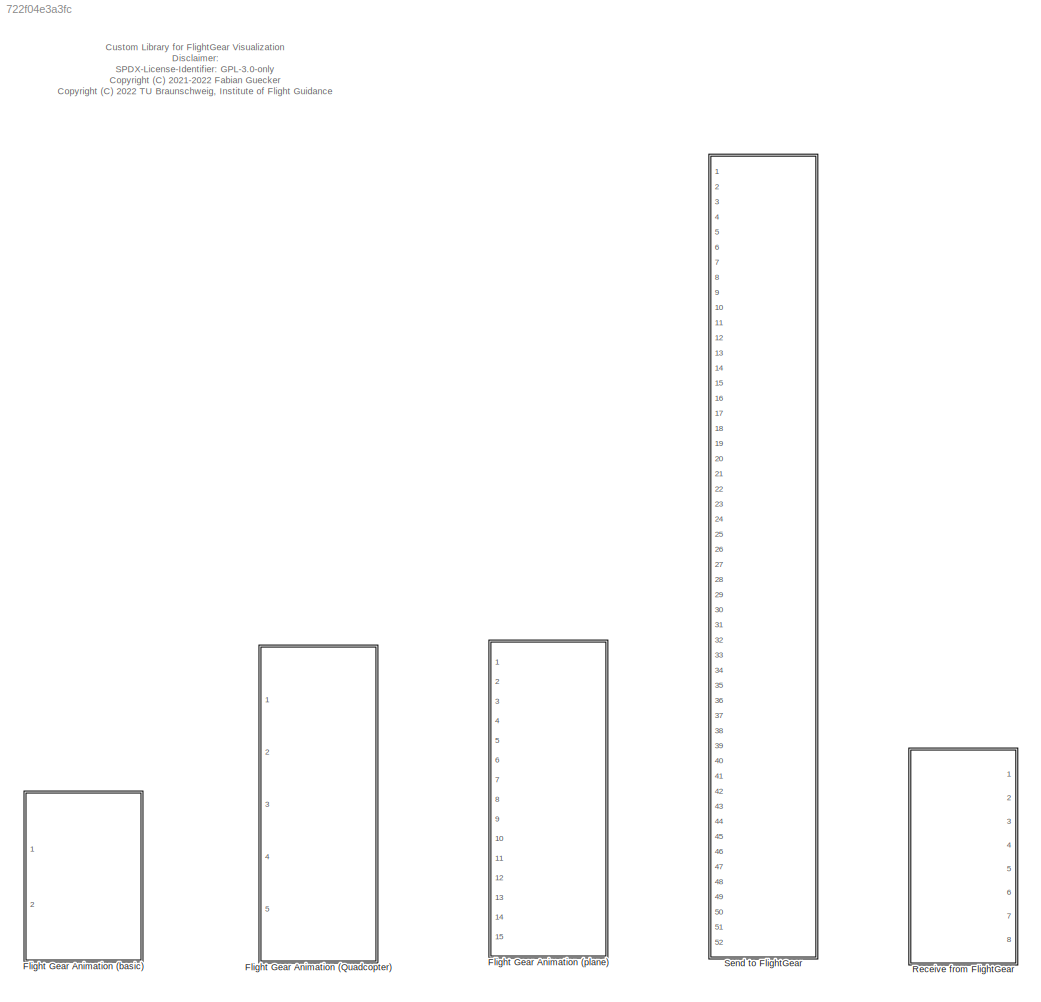
MODEL slx_722f04e3a3fc
KIND library
CONFIG AbsTol = auto
CONFIG EnableMultiTasking = off
CONFIG FixedStep = auto
CONFIG MaxStep = auto
CONFIG MinStep = auto
CONFIG RelTol = 1e-3
CONFIG SampleTimeConstraint = Unconstrained
CONFIG Solver = VariableStepAuto
CONFIG SolverName = VariableStepAuto
CONFIG StartTime = 0.0
CONFIG StopTime = 10.0
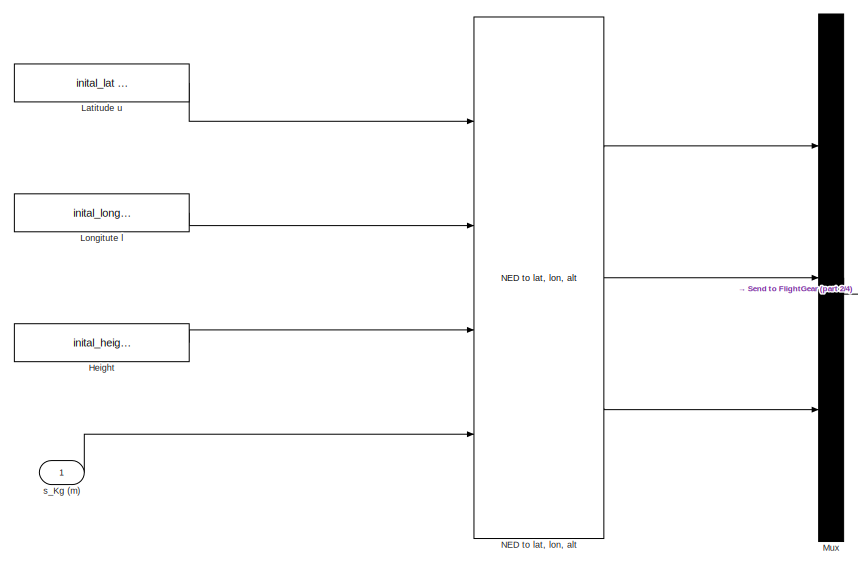
[diagram: Flight Gear Animation (Quadcopter) - part 1/4, top left region]
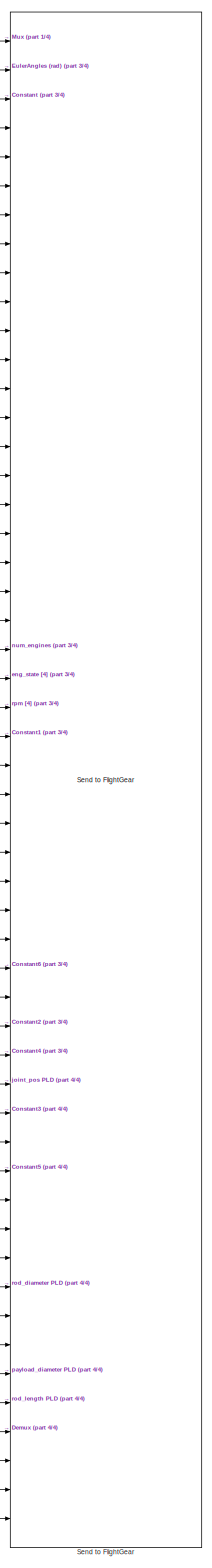
[diagram: Flight Gear Animation (Quadcopter) - part 2/4, right side, full height]
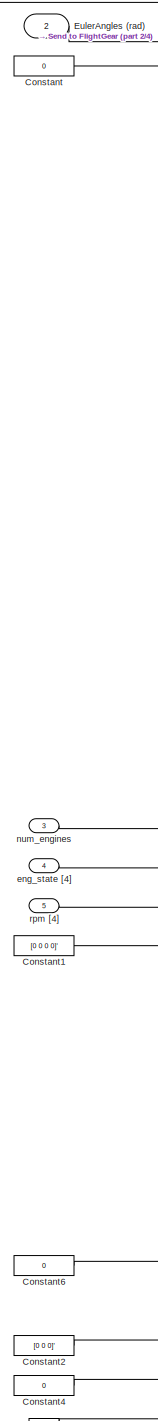
[diagram: Flight Gear Animation (Quadcopter) - part 3/4, central region]
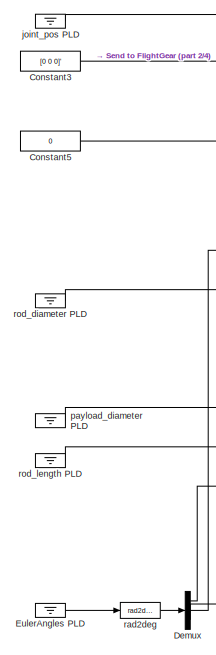
[diagram: Flight Gear Animation (Quadcopter) - part 4/4, bottom right region]
BLOCK [SubSystem] Flight Gear Animation (Quadcopter)
  Ports = [5]
  RequestExecContextInheritance = off
BLOCK [Constant] Flight Gear Animation (Quadcopter)/Constant
  Value = 0
BLOCK [Constant] Flight Gear Animation (Quadcopter)/Constant1
  Value = [0 0 0 0]'
  VectorParams1D = off
BLOCK [Constant] Flight Gear Animation (Quadcopter)/Constant2
  Value = [0 0 0]'
  VectorParams1D = off
BLOCK [Constant] Flight Gear Animation (Quadcopter)/Constant3
  Value = [0 0 0]'
  VectorParams1D = off
BLOCK [Constant] Flight Gear Animation (Quadcopter)/Constant4
  Value = 0
BLOCK [Constant] Flight Gear Animation (Quadcopter)/Constant5
  Value = 0
BLOCK [Constant] Flight Gear Animation (Quadcopter)/Constant6
  Value = 0
BLOCK [Demux] Flight Gear Animation (Quadcopter)/Demux
  DisplayOption = bar
  Outputs = 3
  Ports = [1, 3]
BLOCK [Inport] Flight Gear Animation (Quadcopter)/EulerAngles (rad)
  IconDisplay = Port number
  Port = 2
BLOCK [Ground] Flight Gear Animation (Quadcopter)/EulerAngles PLD
BLOCK [Constant] Flight Gear Animation (Quadcopter)/Height
  Value = inital_height
BLOCK [Constant] Flight Gear Animation (Quadcopter)/Latitude u
  Value = inital_lat * pi / 180
BLOCK [Constant] Flight Gear Animation (Quadcopter)/Longitute l
  Value = inital_long * pi / 180
BLOCK [Mux] Flight Gear Animation (Quadcopter)/Mux
  DisplayOption = bar
  Inputs = 3
  Ports = [3, 1]
BLOCK [Reference] Flight Gear Animation (Quadcopter)/NED to lat, lon, alt  REF=axes_transformation_lib/NED to lat, lon, alt  (lib defined in slx_69e2413c78c0)
  Ports = [4, 3]
  SourceBlock = axes_transformation_lib/NED to lat, lon, alt
  SourceProductName = LADAC
  SourceType = SubSystem
BLOCK [Reference] Flight Gear Animation (Quadcopter)/Send to FlightGear  REF=$bdroot/Send to FlightGear
  Ports = [52]
  SourceBlock = $bdroot/Send to FlightGear
BLOCK [Inport] Flight Gear Animation (Quadcopter)/eng_state [4]
  IconDisplay = Port number
  Port = 4
  PortDimensions = [4]
BLOCK [Ground] Flight Gear Animation (Quadcopter)/joint_pos PLD
BLOCK [Inport] Flight Gear Animation (Quadcopter)/num_engines
  IconDisplay = Port number
  Port = 3
  PortDimensions = [1]
BLOCK [Ground] Flight Gear Animation (Quadcopter)/payload_diameter PLD
BLOCK [Reference] Flight Gear Animation (Quadcopter)/rad2deg  REF=unit_conversions_lib/rad2deg  (lib defined in slx_ae2855d4d91e)
  Ports = [1, 1]
  SourceBlock = unit_conversions_lib/rad2deg
  SourceProductName = LADAC
BLOCK [Ground] Flight Gear Animation (Quadcopter)/rod_diameter PLD
BLOCK [Ground] Flight Gear Animation (Quadcopter)/rod_length PLD
BLOCK [Inport] Flight Gear Animation (Quadcopter)/rpm [4]
  IconDisplay = Port number
  Port = 5
  PortDimensions = [4]
BLOCK [Inport] Flight Gear Animation (Quadcopter)/s_Kg (m)
  IconDisplay = Port number
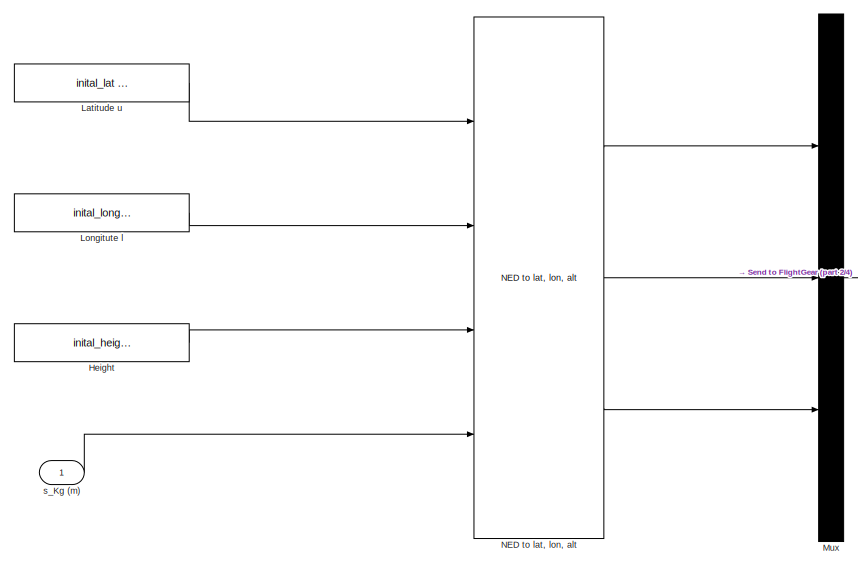
[diagram: Flight Gear Animation (basic) - part 1/4, top left region]
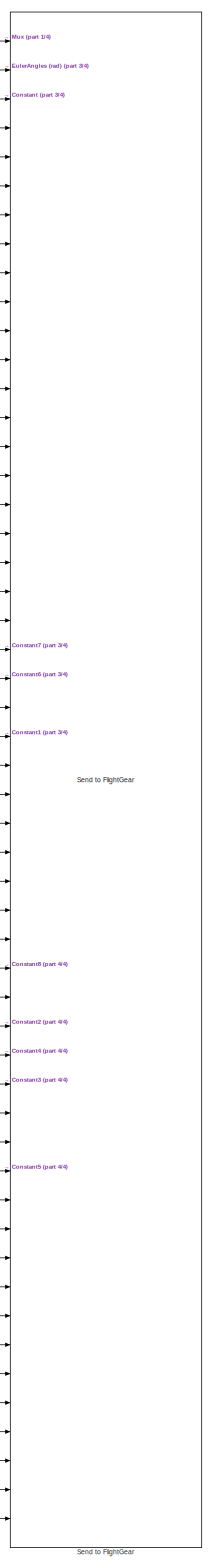
[diagram: Flight Gear Animation (basic) - part 2/4, right side, full height]
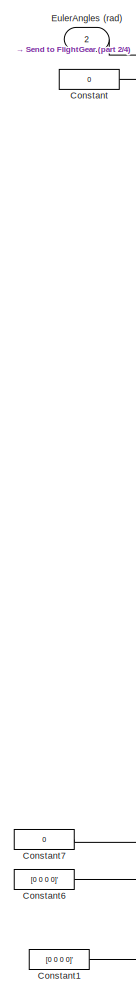
[diagram: Flight Gear Animation (basic) - part 3/4, central region]
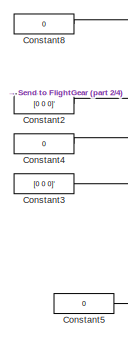
[diagram: Flight Gear Animation (basic) - part 4/4, bottom right region]
BLOCK [SubSystem] Flight Gear Animation (basic)
  Ports = [2]
  RequestExecContextInheritance = off
BLOCK [Constant] Flight Gear Animation (basic)/Constant
  Value = 0
BLOCK [Constant] Flight Gear Animation (basic)/Constant1
  Value = [0 0 0 0]'
  VectorParams1D = off
BLOCK [Constant] Flight Gear Animation (basic)/Constant2
  Value = [0 0 0]'
  VectorParams1D = off
BLOCK [Constant] Flight Gear Animation (basic)/Constant3
  Value = [0 0 0]'
  VectorParams1D = off
BLOCK [Constant] Flight Gear Animation (basic)/Constant4
  Value = 0
BLOCK [Constant] Flight Gear Animation (basic)/Constant5
  Value = 0
BLOCK [Constant] Flight Gear Animation (basic)/Constant6
  Value = [0 0 0 0]'
  VectorParams1D = off
BLOCK [Constant] Flight Gear Animation (basic)/Constant7
  Value = 0
  VectorParams1D = off
BLOCK [Constant] Flight Gear Animation (basic)/Constant8
  Value = 0
BLOCK [Inport] Flight Gear Animation (basic)/EulerAngles (rad)
  IconDisplay = Port number
  Port = 2
BLOCK [Constant] Flight Gear Animation (basic)/Height
  Value = inital_height
BLOCK [Constant] Flight Gear Animation (basic)/Latitude u
  Value = inital_lat * pi / 180
BLOCK [Constant] Flight Gear Animation (basic)/Longitute l
  Value = inital_long * pi / 180
BLOCK [Mux] Flight Gear Animation (basic)/Mux
  DisplayOption = bar
  Inputs = 3
  Ports = [3, 1]
BLOCK [Reference] Flight Gear Animation (basic)/NED to lat, lon, alt  REF=axes_transformation_lib/NED to lat, lon, alt  (lib defined in slx_69e2413c78c0)
  Ports = [4, 3]
  SourceBlock = axes_transformation_lib/NED to lat, lon, alt
  SourceProductName = LADAC
  SourceType = SubSystem
BLOCK [Reference] Flight Gear Animation (basic)/Send to FlightGear  REF=$bdroot/Send to FlightGear
  Ports = [52]
  SourceBlock = $bdroot/Send to FlightGear
BLOCK [Inport] Flight Gear Animation (basic)/s_Kg (m)
  IconDisplay = Port number
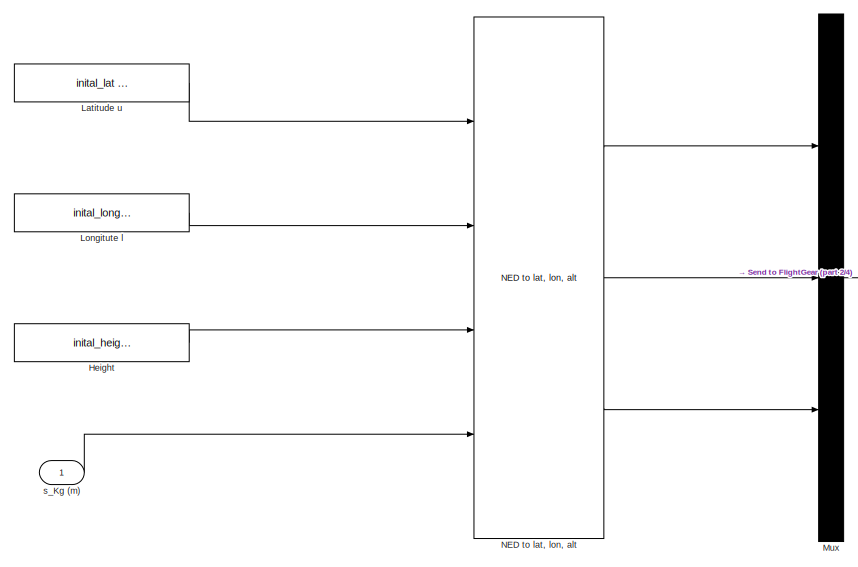
[diagram: Flight Gear Animation (plane) - part 1/4, top left region]
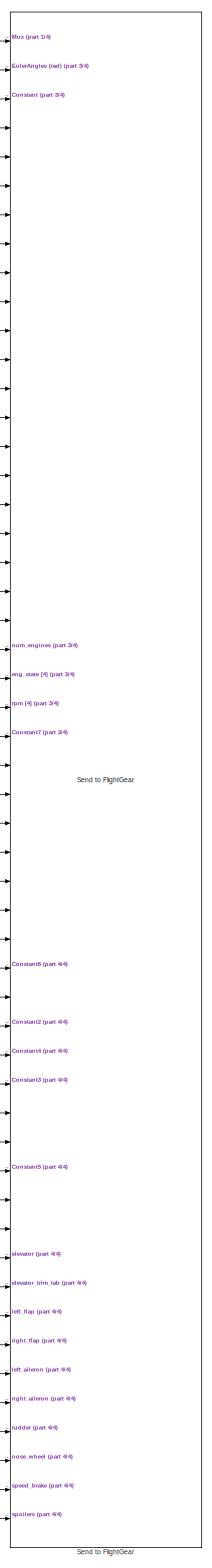
[diagram: Flight Gear Animation (plane) - part 2/4, right side, full height]
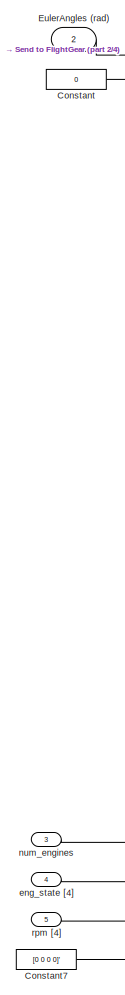
[diagram: Flight Gear Animation (plane) - part 3/4, central region]
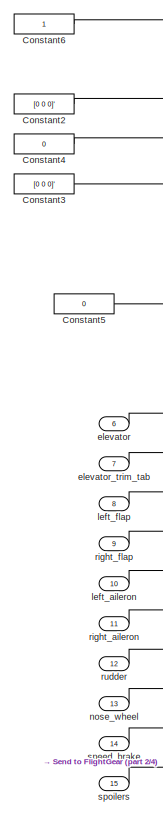
[diagram: Flight Gear Animation (plane) - part 4/4, bottom right region]
BLOCK [SubSystem] Flight Gear Animation (plane)
  Ports = [15]
  RequestExecContextInheritance = off
BLOCK [Constant] Flight Gear Animation (plane)/Constant
  Value = 0
BLOCK [Constant] Flight Gear Animation (plane)/Constant2
  Value = [0 0 0]'
  VectorParams1D = off
BLOCK [Constant] Flight Gear Animation (plane)/Constant3
  Value = [0 0 0]'
  VectorParams1D = off
BLOCK [Constant] Flight Gear Animation (plane)/Constant4
  Value = 0
BLOCK [Constant] Flight Gear Animation (plane)/Constant5
  Value = 0
BLOCK [Constant] Flight Gear Animation (plane)/Constant6
BLOCK [Constant] Flight Gear Animation (plane)/Constant7
  Value = [0 0 0 0]'
  VectorParams1D = off
BLOCK [Inport] Flight Gear Animation (plane)/EulerAngles (rad)
  IconDisplay = Port number
  Port = 2
BLOCK [Constant] Flight Gear Animation (plane)/Height
  Value = inital_height
BLOCK [Constant] Flight Gear Animation (plane)/Latitude u
  Value = inital_lat * pi / 180
BLOCK [Constant] Flight Gear Animation (plane)/Longitute l
  Value = inital_long * pi / 180
BLOCK [Mux] Flight Gear Animation (plane)/Mux
  DisplayOption = bar
  Inputs = 3
  Ports = [3, 1]
BLOCK [Reference] Flight Gear Animation (plane)/NED to lat, lon, alt  REF=axes_transformation_lib/NED to lat, lon, alt  (lib defined in slx_69e2413c78c0)
  Ports = [4, 3]
  SourceBlock = axes_transformation_lib/NED to lat, lon, alt
  SourceProductName = LADAC
  SourceType = SubSystem
BLOCK [Reference] Flight Gear Animation (plane)/Send to FlightGear  REF=$bdroot/Send to FlightGear
  Ports = [52]
  SourceBlock = $bdroot/Send to FlightGear
BLOCK [Inport] Flight Gear Animation (plane)/elevator
  IconDisplay = Port number
  Port = 6
  PortDimensions = [1]
BLOCK [Inport] Flight Gear Animation (plane)/elevator_trim_tab
  IconDisplay = Port number
  Port = 7
  PortDimensions = [1]
BLOCK [Inport] Flight Gear Animation (plane)/eng_state [4]
  IconDisplay = Port number
  Port = 4
  PortDimensions = [4]
BLOCK [Inport] Flight Gear Animation (plane)/left_aileron
  IconDisplay = Port number
  Port = 10
  PortDimensions = [1]
BLOCK [Inport] Flight Gear Animation (plane)/left_flap
  IconDisplay = Port number
  Port = 8
  PortDimensions = [1]
BLOCK [Inport] Flight Gear Animation (plane)/nose_wheel
  IconDisplay = Port number
  Port = 13
  PortDimensions = [1]
BLOCK [Inport] Flight Gear Animation (plane)/num_engines
  IconDisplay = Port number
  Port = 3
  PortDimensions = [1]
BLOCK [Inport] Flight Gear Animation (plane)/right_aileron
  IconDisplay = Port number
  Port = 11
  PortDimensions = [1]
BLOCK [Inport] Flight Gear Animation (plane)/right_flap
  IconDisplay = Port number
  Port = 9
  PortDimensions = [1]
BLOCK [Inport] Flight Gear Animation (plane)/rpm [4]
  IconDisplay = Port number
  Port = 5
  PortDimensions = [4]
BLOCK [Inport] Flight Gear Animation (plane)/rudder
  IconDisplay = Port number
  Port = 12
  PortDimensions = [1]
BLOCK [Inport] Flight Gear Animation (plane)/s_Kg (m)
  IconDisplay = Port number
BLOCK [Inport] Flight Gear Animation (plane)/speed_brake
  IconDisplay = Port number
  Port = 14
  PortDimensions = [1]
BLOCK [Inport] Flight Gear Animation (plane)/spoilers
  IconDisplay = Port number
  Port = 15
  PortDimensions = [1]
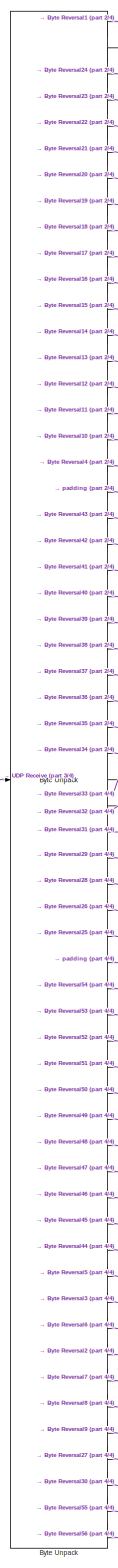
[diagram: Receive from FlightGear - part 1/4, center side, full height]
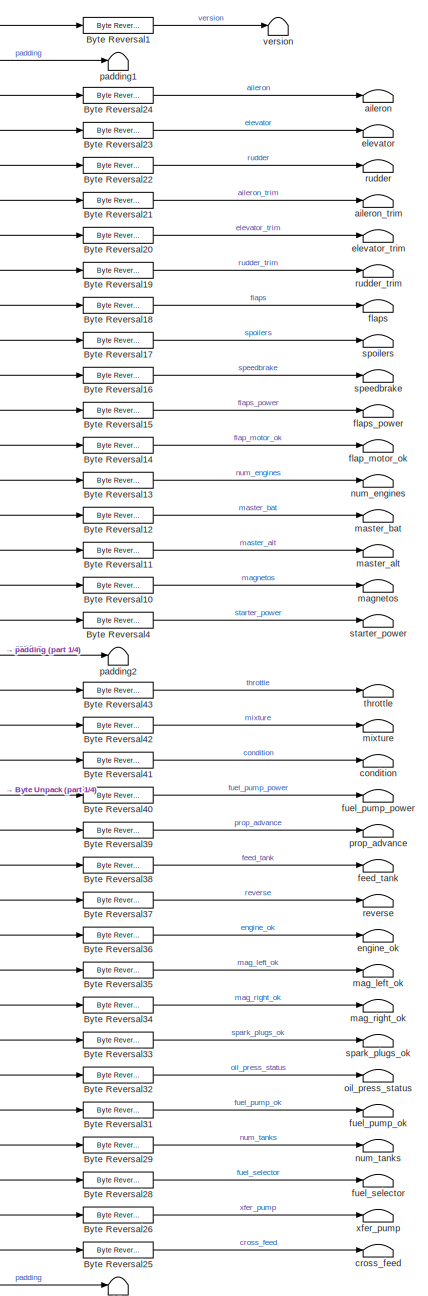
[diagram: Receive from FlightGear - part 2/4, top right region]
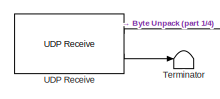
[diagram: Receive from FlightGear - part 3/4, middle left region]
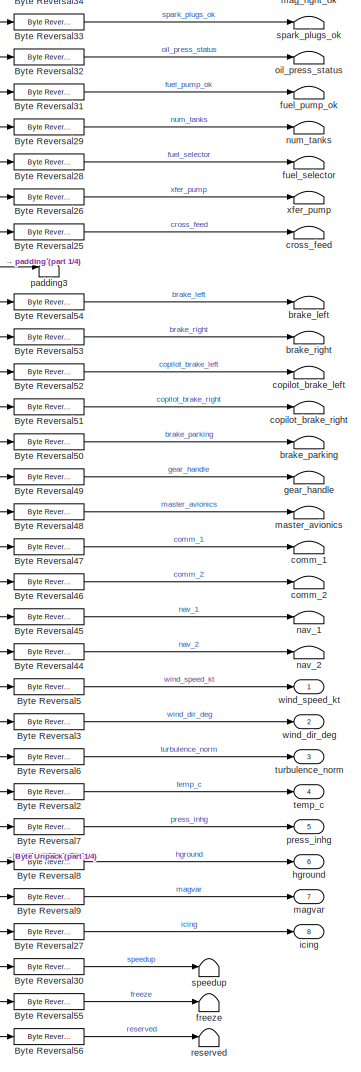
[diagram: Receive from FlightGear - part 4/4, bottom right region]
BLOCK [SubSystem] Receive from FlightGear
  Ports = [0, 8]
  RequestExecContextInheritance = off
BLOCK [Reference] Receive from FlightGear/Byte Reversal1  REF=etargetslib/Byte Reversal
  Ports = [1, 1]
  SourceBlock = etargetslib/Byte Reversal
  SourceType = Byte Reversal
BLOCK [Reference] Receive from FlightGear/Byte Reversal10  REF=etargetslib/Byte Reversal
  Ports = [1, 1]
  SourceBlock = etargetslib/Byte Reversal
  SourceType = Byte Reversal
BLOCK [Reference] Receive from FlightGear/Byte Reversal11  REF=etargetslib/Byte Reversal
  Ports = [1, 1]
  SourceBlock = etargetslib/Byte Reversal
  SourceType = Byte Reversal
BLOCK [Reference] Receive from FlightGear/Byte Reversal12  REF=etargetslib/Byte Reversal
  Ports = [1, 1]
  SourceBlock = etargetslib/Byte Reversal
  SourceType = Byte Reversal
BLOCK [Reference] Receive from FlightGear/Byte Reversal13  REF=etargetslib/Byte Reversal
  Ports = [1, 1]
  SourceBlock = etargetslib/Byte Reversal
  SourceType = Byte Reversal
BLOCK [Reference] Receive from FlightGear/Byte Reversal14  REF=etargetslib/Byte Reversal
  Ports = [1, 1]
  SourceBlock = etargetslib/Byte Reversal
  SourceType = Byte Reversal
BLOCK [Reference] Receive from FlightGear/Byte Reversal15  REF=etargetslib/Byte Reversal
  Ports = [1, 1]
  SourceBlock = etargetslib/Byte Reversal
  SourceType = Byte Reversal
BLOCK [Reference] Receive from FlightGear/Byte Reversal16  REF=etargetslib/Byte Reversal
  Ports = [1, 1]
  SourceBlock = etargetslib/Byte Reversal
  SourceType = Byte Reversal
BLOCK [Reference] Receive from FlightGear/Byte Reversal17  REF=etargetslib/Byte Reversal
  Ports = [1, 1]
  SourceBlock = etargetslib/Byte Reversal
  SourceType = Byte Reversal
BLOCK [Reference] Receive from FlightGear/Byte Reversal18  REF=etargetslib/Byte Reversal
  Ports = [1, 1]
  SourceBlock = etargetslib/Byte Reversal
  SourceType = Byte Reversal
BLOCK [Reference] Receive from FlightGear/Byte Reversal19  REF=etargetslib/Byte Reversal
  Ports = [1, 1]
  SourceBlock = etargetslib/Byte Reversal
  SourceType = Byte Reversal
BLOCK [Reference] Receive from FlightGear/Byte Reversal2  REF=etargetslib/Byte Reversal
  Ports = [1, 1]
  SourceBlock = etargetslib/Byte Reversal
  SourceType = Byte Reversal
BLOCK [Reference] Receive from FlightGear/Byte Reversal20  REF=etargetslib/Byte Reversal
  Ports = [1, 1]
  SourceBlock = etargetslib/Byte Reversal
  SourceType = Byte Reversal
BLOCK [Reference] Receive from FlightGear/Byte Reversal21  REF=etargetslib/Byte Reversal
  Ports = [1, 1]
  SourceBlock = etargetslib/Byte Reversal
  SourceType = Byte Reversal
BLOCK [Reference] Receive from FlightGear/Byte Reversal22  REF=etargetslib/Byte Reversal
  Ports = [1, 1]
  SourceBlock = etargetslib/Byte Reversal
  SourceType = Byte Reversal
BLOCK [Reference] Receive from FlightGear/Byte Reversal23  REF=etargetslib/Byte Reversal
  Ports = [1, 1]
  SourceBlock = etargetslib/Byte Reversal
  SourceType = Byte Reversal
BLOCK [Reference] Receive from FlightGear/Byte Reversal24  REF=etargetslib/Byte Reversal
  Ports = [1, 1]
  SourceBlock = etargetslib/Byte Reversal
  SourceType = Byte Reversal
BLOCK [Reference] Receive from FlightGear/Byte Reversal25  REF=etargetslib/Byte Reversal
  Ports = [1, 1]
  SourceBlock = etargetslib/Byte Reversal
  SourceType = Byte Reversal
BLOCK [Reference] Receive from FlightGear/Byte Reversal26  REF=etargetslib/Byte Reversal
  Ports = [1, 1]
  SourceBlock = etargetslib/Byte Reversal
  SourceType = Byte Reversal
BLOCK [Reference] Receive from FlightGear/Byte Reversal27  REF=etargetslib/Byte Reversal
  Ports = [1, 1]
  SourceBlock = etargetslib/Byte Reversal
  SourceType = Byte Reversal
BLOCK [Reference] Receive from FlightGear/Byte Reversal28  REF=etargetslib/Byte Reversal
  Ports = [1, 1]
  SourceBlock = etargetslib/Byte Reversal
  SourceType = Byte Reversal
BLOCK [Reference] Receive from FlightGear/Byte Reversal29  REF=etargetslib/Byte Reversal
  Ports = [1, 1]
  SourceBlock = etargetslib/Byte Reversal
  SourceType = Byte Reversal
BLOCK [Reference] Receive from FlightGear/Byte Reversal3  REF=etargetslib/Byte Reversal
  Ports = [1, 1]
  SourceBlock = etargetslib/Byte Reversal
  SourceType = Byte Reversal
BLOCK [Reference] Receive from FlightGear/Byte Reversal30  REF=etargetslib/Byte Reversal
  Ports = [1, 1]
  SourceBlock = etargetslib/Byte Reversal
  SourceType = Byte Reversal
BLOCK [Reference] Receive from FlightGear/Byte Reversal31  REF=etargetslib/Byte Reversal
  Ports = [1, 1]
  SourceBlock = etargetslib/Byte Reversal
  SourceType = Byte Reversal
BLOCK [Reference] Receive from FlightGear/Byte Reversal32  REF=etargetslib/Byte Reversal
  Ports = [1, 1]
  SourceBlock = etargetslib/Byte Reversal
  SourceType = Byte Reversal
BLOCK [Reference] Receive from FlightGear/Byte Reversal33  REF=etargetslib/Byte Reversal
  Ports = [1, 1]
  SourceBlock = etargetslib/Byte Reversal
  SourceType = Byte Reversal
BLOCK [Reference] Receive from FlightGear/Byte Reversal34  REF=etargetslib/Byte Reversal
  Ports = [1, 1]
  SourceBlock = etargetslib/Byte Reversal
  SourceType = Byte Reversal
BLOCK [Reference] Receive from FlightGear/Byte Reversal35  REF=etargetslib/Byte Reversal
  Ports = [1, 1]
  SourceBlock = etargetslib/Byte Reversal
  SourceType = Byte Reversal
BLOCK [Reference] Receive from FlightGear/Byte Reversal36  REF=etargetslib/Byte Reversal
  Ports = [1, 1]
  SourceBlock = etargetslib/Byte Reversal
  SourceType = Byte Reversal
BLOCK [Reference] Receive from FlightGear/Byte Reversal37  REF=etargetslib/Byte Reversal
  Ports = [1, 1]
  SourceBlock = etargetslib/Byte Reversal
  SourceType = Byte Reversal
BLOCK [Reference] Receive from FlightGear/Byte Reversal38  REF=etargetslib/Byte Reversal
  Ports = [1, 1]
  SourceBlock = etargetslib/Byte Reversal
  SourceType = Byte Reversal
BLOCK [Reference] Receive from FlightGear/Byte Reversal39  REF=etargetslib/Byte Reversal
  Ports = [1, 1]
  SourceBlock = etargetslib/Byte Reversal
  SourceType = Byte Reversal
BLOCK [Reference] Receive from FlightGear/Byte Reversal4  REF=etargetslib/Byte Reversal
  Ports = [1, 1]
  SourceBlock = etargetslib/Byte Reversal
  SourceType = Byte Reversal
BLOCK [Reference] Receive from FlightGear/Byte Reversal40  REF=etargetslib/Byte Reversal
  Ports = [1, 1]
  SourceBlock = etargetslib/Byte Reversal
  SourceType = Byte Reversal
BLOCK [Reference] Receive from FlightGear/Byte Reversal41  REF=etargetslib/Byte Reversal
  Ports = [1, 1]
  SourceBlock = etargetslib/Byte Reversal
  SourceType = Byte Reversal
BLOCK [Reference] Receive from FlightGear/Byte Reversal42  REF=etargetslib/Byte Reversal
  Ports = [1, 1]
  SourceBlock = etargetslib/Byte Reversal
  SourceType = Byte Reversal
BLOCK [Reference] Receive from FlightGear/Byte Reversal43  REF=etargetslib/Byte Reversal
  Ports = [1, 1]
  SourceBlock = etargetslib/Byte Reversal
  SourceType = Byte Reversal
BLOCK [Reference] Receive from FlightGear/Byte Reversal44  REF=etargetslib/Byte Reversal
  Ports = [1, 1]
  SourceBlock = etargetslib/Byte Reversal
  SourceType = Byte Reversal
BLOCK [Reference] Receive from FlightGear/Byte Reversal45  REF=etargetslib/Byte Reversal
  Ports = [1, 1]
  SourceBlock = etargetslib/Byte Reversal
  SourceType = Byte Reversal
BLOCK [Reference] Receive from FlightGear/Byte Reversal46  REF=etargetslib/Byte Reversal
  Ports = [1, 1]
  SourceBlock = etargetslib/Byte Reversal
  SourceType = Byte Reversal
BLOCK [Reference] Receive from FlightGear/Byte Reversal47  REF=etargetslib/Byte Reversal
  Ports = [1, 1]
  SourceBlock = etargetslib/Byte Reversal
  SourceType = Byte Reversal
BLOCK [Reference] Receive from FlightGear/Byte Reversal48  REF=etargetslib/Byte Reversal
  Ports = [1, 1]
  SourceBlock = etargetslib/Byte Reversal
  SourceType = Byte Reversal
BLOCK [Reference] Receive from FlightGear/Byte Reversal49  REF=etargetslib/Byte Reversal
  Ports = [1, 1]
  SourceBlock = etargetslib/Byte Reversal
  SourceType = Byte Reversal
BLOCK [Reference] Receive from FlightGear/Byte Reversal5  REF=etargetslib/Byte Reversal
  Ports = [1, 1]
  SourceBlock = etargetslib/Byte Reversal
  SourceType = Byte Reversal
BLOCK [Reference] Receive from FlightGear/Byte Reversal50  REF=etargetslib/Byte Reversal
  Ports = [1, 1]
  SourceBlock = etargetslib/Byte Reversal
  SourceType = Byte Reversal
BLOCK [Reference] Receive from FlightGear/Byte Reversal51  REF=etargetslib/Byte Reversal
  Ports = [1, 1]
  SourceBlock = etargetslib/Byte Reversal
  SourceType = Byte Reversal
BLOCK [Reference] Receive from FlightGear/Byte Reversal52  REF=etargetslib/Byte Reversal
  Ports = [1, 1]
  SourceBlock = etargetslib/Byte Reversal
  SourceType = Byte Reversal
BLOCK [Reference] Receive from FlightGear/Byte Reversal53  REF=etargetslib/Byte Reversal
  Ports = [1, 1]
  SourceBlock = etargetslib/Byte Reversal
  SourceType = Byte Reversal
BLOCK [Reference] Receive from FlightGear/Byte Reversal54  REF=etargetslib/Byte Reversal
  Ports = [1, 1]
  SourceBlock = etargetslib/Byte Reversal
  SourceType = Byte Reversal
BLOCK [Reference] Receive from FlightGear/Byte Reversal55  REF=etargetslib/Byte Reversal
  Ports = [1, 1]
  SourceBlock = etargetslib/Byte Reversal
  SourceType = Byte Reversal
BLOCK [Reference] Receive from FlightGear/Byte Reversal56  REF=etargetslib/Byte Reversal
  Ports = [1, 1]
  SourceBlock = etargetslib/Byte Reversal
  SourceType = Byte Reversal
BLOCK [Reference] Receive from FlightGear/Byte Reversal6  REF=etargetslib/Byte Reversal
  Ports = [1, 1]
  SourceBlock = etargetslib/Byte Reversal
  SourceType = Byte Reversal
BLOCK [Reference] Receive from FlightGear/Byte Reversal7  REF=etargetslib/Byte Reversal
  Ports = [1, 1]
  SourceBlock = etargetslib/Byte Reversal
  SourceType = Byte Reversal
BLOCK [Reference] Receive from FlightGear/Byte Reversal8  REF=etargetslib/Byte Reversal
  Ports = [1, 1]
  SourceBlock = etargetslib/Byte Reversal
  SourceType = Byte Reversal
BLOCK [Reference] Receive from FlightGear/Byte Reversal9  REF=etargetslib/Byte Reversal
  Ports = [1, 1]
  SourceBlock = etargetslib/Byte Reversal
  SourceType = Byte Reversal
BLOCK [Reference] Receive from FlightGear/Byte Unpack  REF=etargetslib/Byte Unpack
  Ports = [1, 59]
  SourceBlock = etargetslib/Byte Unpack
  SourceType = Byte Unpack
BLOCK [Terminator] Receive from FlightGear/Terminator
BLOCK [Reference] Receive from FlightGear/UDP Receive  REF=dspnetwork/UDP Receive
  Ports = [0, 2]
  SourceBlock = dspnetwork/UDP Receive
  SourceProductBaseCode = DS
  SourceProductName = DSP System Toolbox
  SourceType = UDP Receive
BLOCK [Terminator] Receive from FlightGear/aileron
BLOCK [Terminator] Receive from FlightGear/aileron_trim
BLOCK [Terminator] Receive from FlightGear/brake_left
BLOCK [Terminator] Receive from FlightGear/brake_parking
BLOCK [Terminator] Receive from FlightGear/brake_right
BLOCK [Terminator] Receive from FlightGear/comm_1
BLOCK [Terminator] Receive from FlightGear/comm_2
BLOCK [Terminator] Receive from FlightGear/condition
BLOCK [Terminator] Receive from FlightGear/copilot_brake_left
BLOCK [Terminator] Receive from FlightGear/copilot_brake_right
BLOCK [Terminator] Receive from FlightGear/cross_feed
BLOCK [Terminator] Receive from FlightGear/elevator
BLOCK [Terminator] Receive from FlightGear/elevator_trim
BLOCK [Terminator] Receive from FlightGear/engine_ok
BLOCK [Terminator] Receive from FlightGear/feed_tank
BLOCK [Terminator] Receive from FlightGear/flap_motor_ok
BLOCK [Terminator] Receive from FlightGear/flaps
BLOCK [Terminator] Receive from FlightGear/flaps_power
BLOCK [Terminator] Receive from FlightGear/freeze
BLOCK [Terminator] Receive from FlightGear/fuel_pump_ok
BLOCK [Terminator] Receive from FlightGear/fuel_pump_power
BLOCK [Terminator] Receive from FlightGear/fuel_selector
BLOCK [Terminator] Receive from FlightGear/gear_handle
BLOCK [Outport] Receive from FlightGear/hground
  IconDisplay = Port number
  Port = 6
BLOCK [Outport] Receive from FlightGear/icing
  IconDisplay = Port number
  Port = 8
BLOCK [Terminator] Receive from FlightGear/mag_left_ok
BLOCK [Terminator] Receive from FlightGear/mag_right_ok
BLOCK [Terminator] Receive from FlightGear/magnetos
BLOCK [Outport] Receive from FlightGear/magvar
  IconDisplay = Port number
  Port = 7
BLOCK [Terminator] Receive from FlightGear/master_alt
BLOCK [Terminator] Receive from FlightGear/master_avionics
BLOCK [Terminator] Receive from FlightGear/master_bat
BLOCK [Terminator] Receive from FlightGear/mixture
BLOCK [Terminator] Receive from FlightGear/nav_1
BLOCK [Terminator] Receive from FlightGear/nav_2
BLOCK [Terminator] Receive from FlightGear/num_engines
BLOCK [Terminator] Receive from FlightGear/num_tanks
BLOCK [Terminator] Receive from FlightGear/oil_press_status
BLOCK [Terminator] Receive from FlightGear/padding1
BLOCK [Terminator] Receive from FlightGear/padding2
BLOCK [Terminator] Receive from FlightGear/padding3
BLOCK [Outport] Receive from FlightGear/press_inhg
  IconDisplay = Port number
  Port = 5
BLOCK [Terminator] Receive from FlightGear/prop_advance
BLOCK [Terminator] Receive from FlightGear/reserved
BLOCK [Terminator] Receive from FlightGear/reverse
BLOCK [Terminator] Receive from FlightGear/rudder
BLOCK [Terminator] Receive from FlightGear/rudder_trim
BLOCK [Terminator] Receive from FlightGear/spark_plugs_ok
BLOCK [Terminator] Receive from FlightGear/speedbrake
BLOCK [Terminator] Receive from FlightGear/speedup
BLOCK [Terminator] Receive from FlightGear/spoilers
BLOCK [Terminator] Receive from FlightGear/starter_power
BLOCK [Outport] Receive from FlightGear/temp_c
  IconDisplay = Port number
  Port = 4
BLOCK [Terminator] Receive from FlightGear/throttle
BLOCK [Outport] Receive from FlightGear/turbulence_norm
  IconDisplay = Port number
  Port = 3
BLOCK [Terminator] Receive from FlightGear/version
BLOCK [Outport] Receive from FlightGear/wind_dir_deg
  IconDisplay = Port number
  Port = 2
BLOCK [Outport] Receive from FlightGear/wind_speed_kt
  IconDisplay = Port number
BLOCK [Terminator] Receive from FlightGear/xfer_pump
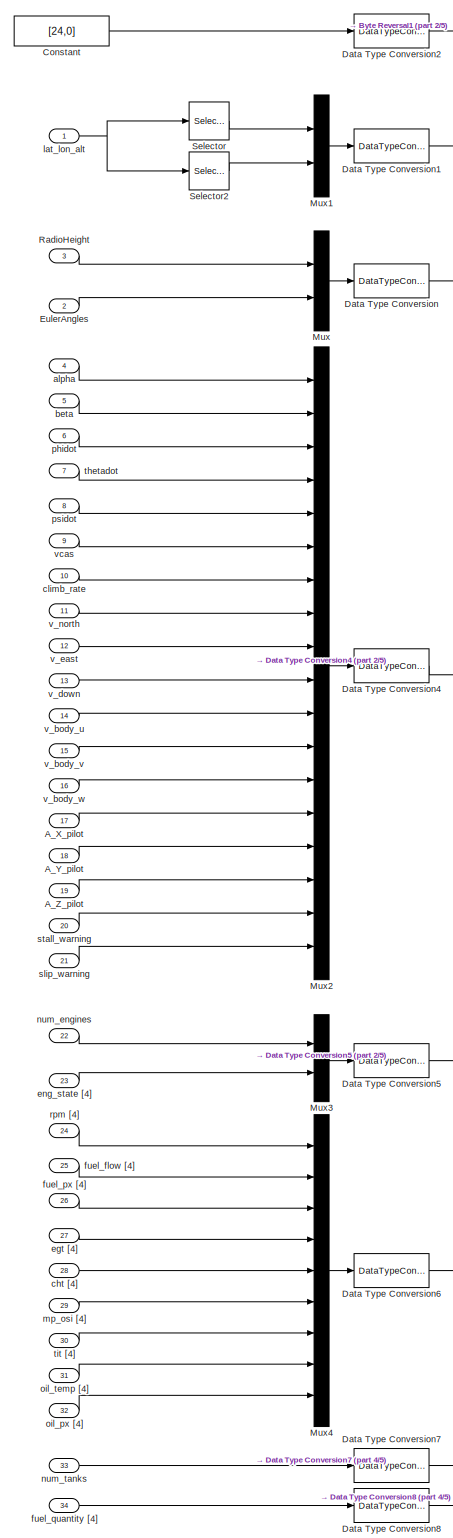
[diagram: Send to FlightGear - part 1/5, middle left region]
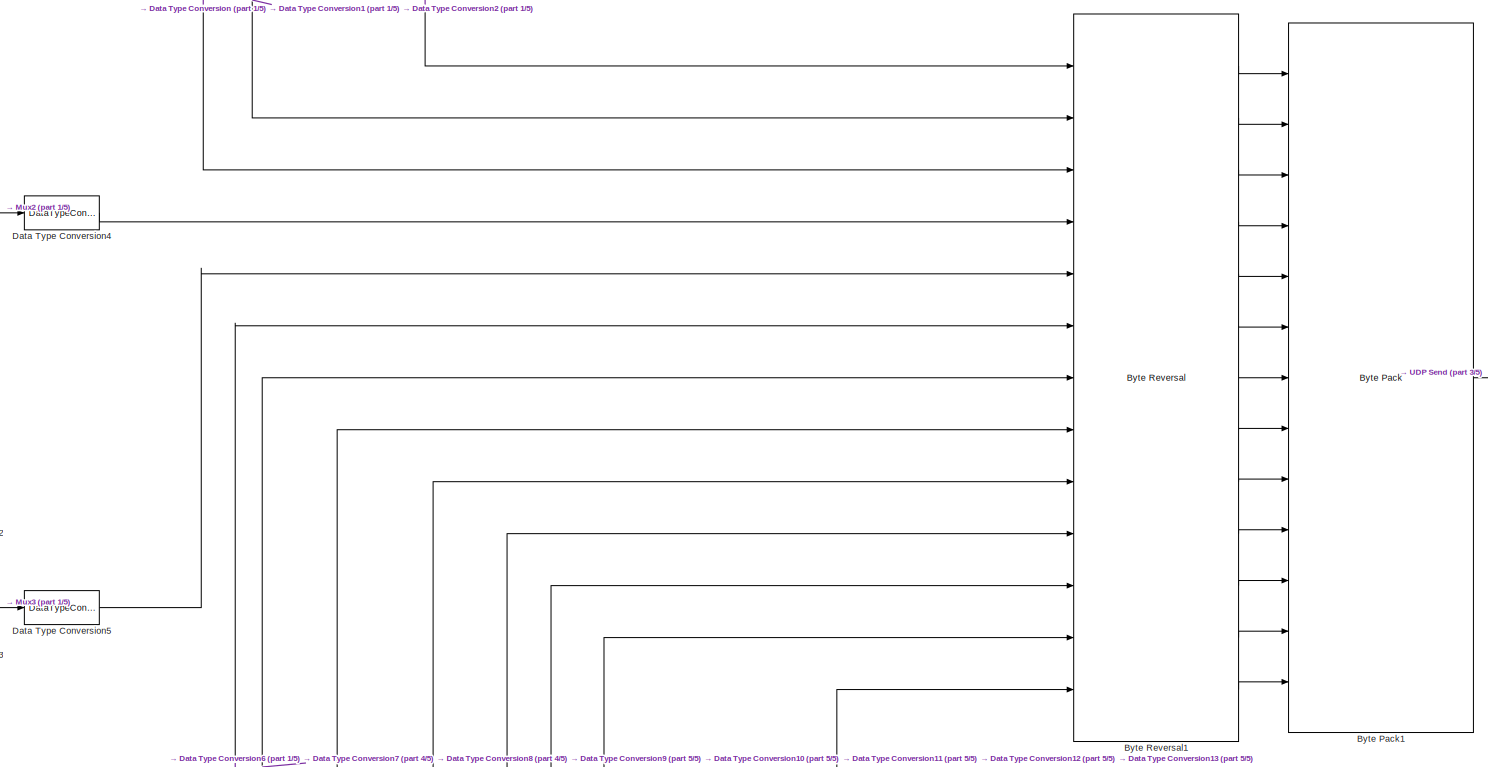
[diagram: Send to FlightGear - part 2/5, central region]
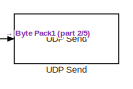
[diagram: Send to FlightGear - part 3/5, middle right region]
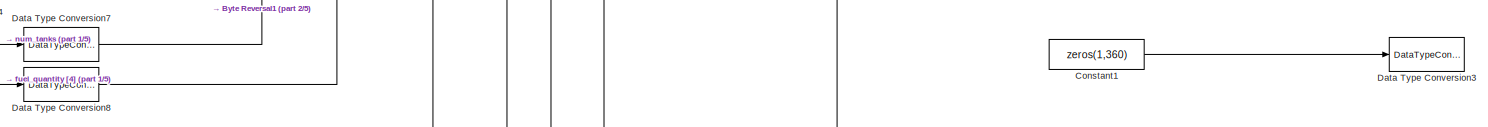
[diagram: Send to FlightGear - part 4/5, central region]
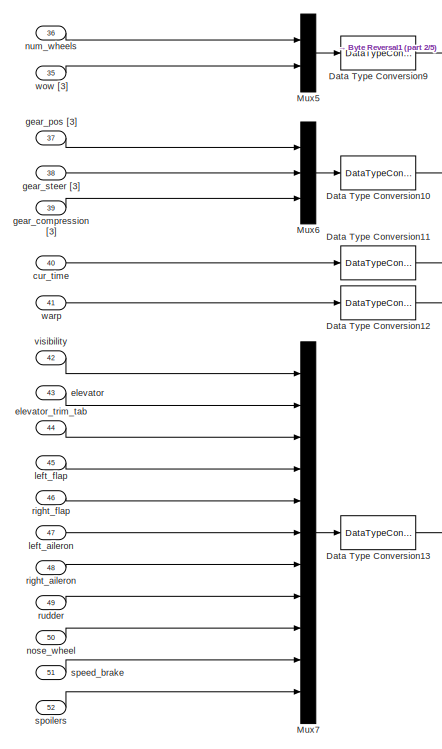
[diagram: Send to FlightGear - part 5/5, bottom left region]
BLOCK [SubSystem] Send to FlightGear
  Ports = [52]
  RequestExecContextInheritance = off
BLOCK [Inport] Send to FlightGear/A_X_pilot
  IconDisplay = Port number
  Port = 17
  PortDimensions = [1]
BLOCK [Inport] Send to FlightGear/A_Y_pilot
  IconDisplay = Port number
  Port = 18
  PortDimensions = [1]
BLOCK [Inport] Send to FlightGear/A_Z_pilot
  IconDisplay = Port number
  Port = 19
  PortDimensions = [1]
BLOCK [Reference] Send to FlightGear/Byte Pack1  REF=etargetslib/Byte Pack
  Ports = [13, 1]
  SourceBlock = etargetslib/Byte Pack
  SourceType = Byte pack
BLOCK [Reference] Send to FlightGear/Byte Reversal1  REF=etargetslib/Byte Reversal
  Ports = [13, 13]
  SourceBlock = etargetslib/Byte Reversal
  SourceType = Byte Reversal
BLOCK [Constant] Send to FlightGear/Constant
  Value = [24,0]
BLOCK [Constant] Send to FlightGear/Constant1
  Commented = on
  Value = zeros(1,360)
BLOCK [DataTypeConversion] Send to FlightGear/Data Type Conversion
  OutDataTypeStr = single
  RndMeth = Floor
  SaturateOnIntegerOverflow = off
BLOCK [DataTypeConversion] Send to FlightGear/Data Type Conversion1
  OutDataTypeStr = double
  RndMeth = Floor
  SaturateOnIntegerOverflow = off
BLOCK [DataTypeConversion] Send to FlightGear/Data Type Conversion10
  OutDataTypeStr = single
  RndMeth = Floor
  SaturateOnIntegerOverflow = off
BLOCK [DataTypeConversion] Send to FlightGear/Data Type Conversion11
  OutDataTypeStr = uint32
  RndMeth = Floor
  SaturateOnIntegerOverflow = off
BLOCK [DataTypeConversion] Send to FlightGear/Data Type Conversion12
  OutDataTypeStr = int32
  RndMeth = Floor
  SaturateOnIntegerOverflow = off
BLOCK [DataTypeConversion] Send to FlightGear/Data Type Conversion13
  OutDataTypeStr = single
  RndMeth = Floor
  SaturateOnIntegerOverflow = off
BLOCK [DataTypeConversion] Send to FlightGear/Data Type Conversion2
  OutDataTypeStr = uint32
  RndMeth = Floor
  SaturateOnIntegerOverflow = off
BLOCK [DataTypeConversion] Send to FlightGear/Data Type Conversion3
  Commented = on
  OutDataTypeStr = uint8
  RndMeth = Floor
  SaturateOnIntegerOverflow = off
BLOCK [DataTypeConversion] Send to FlightGear/Data Type Conversion4
  OutDataTypeStr = single
  RndMeth = Floor
  SaturateOnIntegerOverflow = off
BLOCK [DataTypeConversion] Send to FlightGear/Data Type Conversion5
  OutDataTypeStr = uint32
  RndMeth = Floor
  SaturateOnIntegerOverflow = off
BLOCK [DataTypeConversion] Send to FlightGear/Data Type Conversion6
  OutDataTypeStr = single
  RndMeth = Floor
  SaturateOnIntegerOverflow = off
BLOCK [DataTypeConversion] Send to FlightGear/Data Type Conversion7
  OutDataTypeStr = uint32
  RndMeth = Floor
  SaturateOnIntegerOverflow = off
BLOCK [DataTypeConversion] Send to FlightGear/Data Type Conversion8
  OutDataTypeStr = single
  RndMeth = Floor
  SaturateOnIntegerOverflow = off
BLOCK [DataTypeConversion] Send to FlightGear/Data Type Conversion9
  OutDataTypeStr = uint32
  RndMeth = Floor
  SaturateOnIntegerOverflow = off
BLOCK [Inport] Send to FlightGear/EulerAngles
  IconDisplay = Port number
  Port = 2
  PortDimensions = [3]
BLOCK [Mux] Send to FlightGear/Mux
  DisplayOption = bar
  Inputs = 2
  Ports = [2, 1]
BLOCK [Mux] Send to FlightGear/Mux1
  DisplayOption = bar
  Inputs = 2
  Ports = [2, 1]
BLOCK [Mux] Send to FlightGear/Mux2
  DisplayOption = bar
  Inputs = 18
  Ports = [18, 1]
BLOCK [Mux] Send to FlightGear/Mux3
  DisplayOption = bar
  Inputs = 2
  Ports = [2, 1]
BLOCK [Mux] Send to FlightGear/Mux4
  DisplayOption = bar
  Inputs = 9
  Ports = [9, 1]
BLOCK [Mux] Send to FlightGear/Mux5
  DisplayOption = bar
  Inputs = 2
  Ports = [2, 1]
BLOCK [Mux] Send to FlightGear/Mux6
  DisplayOption = bar
  Inputs = 3
  Ports = [3, 1]
BLOCK [Mux] Send to FlightGear/Mux7
  DisplayOption = bar
  Inputs = 11
  Ports = [11, 1]
BLOCK [Inport] Send to FlightGear/RadioHeight
  IconDisplay = Port number
  Port = 3
  PortDimensions = [1]
BLOCK [Selector] Send to FlightGear/Selector
  IndexOptions = Index vector (dialog)
  Indices = [2 1]
  InputPortWidth = 3
  OutputSizes = 1
  Ports = [1, 1]
BLOCK [Selector] Send to FlightGear/Selector2
  IndexOptions = Index vector (dialog)
  Indices = [3]
  InputPortWidth = 3
  OutputSizes = 1
  Ports = [1, 1]
BLOCK [Reference] Send to FlightGear/UDP Send  REF=dspnetwork/UDP Send
  Ports = [1]
  SourceBlock = dspnetwork/UDP Send
  SourceProductBaseCode = DS
  SourceProductName = DSP System Toolbox
  SourceType = UDP Send
BLOCK [Inport] Send to FlightGear/alpha
  IconDisplay = Port number
  Port = 4
  PortDimensions = [1]
BLOCK [Inport] Send to FlightGear/beta
  IconDisplay = Port number
  Port = 5
  PortDimensions = [1]
BLOCK [Inport] Send to FlightGear/cht [4]
  IconDisplay = Port number
  Port = 28
  PortDimensions = [4]
BLOCK [Inport] Send to FlightGear/climb_rate
  IconDisplay = Port number
  Port = 10
  PortDimensions = [1]
BLOCK [Inport] Send to FlightGear/cur_time
  IconDisplay = Port number
  Port = 40
  PortDimensions = [1]
BLOCK [Inport] Send to FlightGear/egt [4]
  IconDisplay = Port number
  Port = 27
  PortDimensions = [4]
BLOCK [Inport] Send to FlightGear/elevator
  IconDisplay = Port number
  Port = 43
  PortDimensions = [1]
BLOCK [Inport] Send to FlightGear/elevator_trim_tab
  IconDisplay = Port number
  Port = 44
  PortDimensions = [1]
BLOCK [Inport] Send to FlightGear/eng_state [4]
  IconDisplay = Port number
  Port = 23
  PortDimensions = [4]
BLOCK [Inport] Send to FlightGear/fuel_flow [4]
  IconDisplay = Port number
  Port = 25
  PortDimensions = [4]
BLOCK [Inport] Send to FlightGear/fuel_px [4]
  IconDisplay = Port number
  Port = 26
  PortDimensions = [4]
BLOCK [Inport] Send to FlightGear/fuel_quantity [4]
  IconDisplay = Port number
  Port = 34
  PortDimensions = [4]
BLOCK [Inport] Send to FlightGear/gear_compression [3]
  IconDisplay = Port number
  Port = 39
  PortDimensions = [3]
BLOCK [Inport] Send to FlightGear/gear_pos [3]
  IconDisplay = Port number
  Port = 37
  PortDimensions = [3]
BLOCK [Inport] Send to FlightGear/gear_steer [3]
  IconDisplay = Port number
  Port = 38
  PortDimensions = [3]
BLOCK [Inport] Send to FlightGear/lat_lon_alt
  IconDisplay = Port number
  PortDimensions = [3]
BLOCK [Inport] Send to FlightGear/left_aileron
  IconDisplay = Port number
  Port = 47
  PortDimensions = [1]
BLOCK [Inport] Send to FlightGear/left_flap
  IconDisplay = Port number
  Port = 45
  PortDimensions = [1]
BLOCK [Inport] Send to FlightGear/mp_osi [4]
  IconDisplay = Port number
  Port = 29
  PortDimensions = [4]
BLOCK [Inport] Send to FlightGear/nose_wheel
  IconDisplay = Port number
  Port = 50
  PortDimensions = [1]
BLOCK [Inport] Send to FlightGear/num_engines
  IconDisplay = Port number
  Port = 22
  PortDimensions = [1]
BLOCK [Inport] Send to FlightGear/num_tanks
  IconDisplay = Port number
  Port = 33
  PortDimensions = [1]
BLOCK [Inport] Send to FlightGear/num_wheels
  IconDisplay = Port number
  Port = 36
  PortDimensions = [1]
BLOCK [Inport] Send to FlightGear/oil_px [4]
  IconDisplay = Port number
  Port = 32
  PortDimensions = [4]
BLOCK [Inport] Send to FlightGear/oil_temp [4]
  IconDisplay = Port number
  Port = 31
  PortDimensions = [4]
BLOCK [Inport] Send to FlightGear/phidot
  IconDisplay = Port number
  Port = 6
  PortDimensions = [1]
BLOCK [Inport] Send to FlightGear/psidot
  IconDisplay = Port number
  Port = 8
  PortDimensions = [1]
BLOCK [Inport] Send to FlightGear/right_aileron
  IconDisplay = Port number
  Port = 48
  PortDimensions = [1]
BLOCK [Inport] Send to FlightGear/right_flap
  IconDisplay = Port number
  Port = 46
  PortDimensions = [1]
BLOCK [Inport] Send to FlightGear/rpm [4]
  IconDisplay = Port number
  Port = 24
  PortDimensions = [4]
BLOCK [Inport] Send to FlightGear/rudder
  IconDisplay = Port number
  Port = 49
  PortDimensions = [1]
BLOCK [Inport] Send to FlightGear/slip_warning
  IconDisplay = Port number
  Port = 21
  PortDimensions = [1]
BLOCK [Inport] Send to FlightGear/speed_brake
  IconDisplay = Port number
  Port = 51
  PortDimensions = [1]
BLOCK [Inport] Send to FlightGear/spoilers
  IconDisplay = Port number
  Port = 52
  PortDimensions = [1]
BLOCK [Inport] Send to FlightGear/stall_warning
  IconDisplay = Port number
  Port = 20
  PortDimensions = [1]
BLOCK [Inport] Send to FlightGear/thetadot
  IconDisplay = Port number
  Port = 7
  PortDimensions = [1]
BLOCK [Inport] Send to FlightGear/tit [4]
  IconDisplay = Port number
  Port = 30
  PortDimensions = [4]
BLOCK [Inport] Send to FlightGear/v_body_u
  IconDisplay = Port number
  Port = 14
  PortDimensions = [1]
BLOCK [Inport] Send to FlightGear/v_body_v
  IconDisplay = Port number
  Port = 15
  PortDimensions = [1]
BLOCK [Inport] Send to FlightGear/v_body_w
  IconDisplay = Port number
  Port = 16
  PortDimensions = [1]
BLOCK [Inport] Send to FlightGear/v_down
  IconDisplay = Port number
  Port = 13
  PortDimensions = [1]
BLOCK [Inport] Send to FlightGear/v_east
  IconDisplay = Port number
  Port = 12
  PortDimensions = [1]
BLOCK [Inport] Send to FlightGear/v_north
  IconDisplay = Port number
  Port = 11
  PortDimensions = [1]
BLOCK [Inport] Send to FlightGear/vcas
  IconDisplay = Port number
  Port = 9
  PortDimensions = [1]
BLOCK [Inport] Send to FlightGear/visibility
  IconDisplay = Port number
  Port = 42
  PortDimensions = [1]
BLOCK [Inport] Send to FlightGear/warp
  IconDisplay = Port number
  Port = 41
  PortDimensions = [1]
BLOCK [Inport] Send to FlightGear/wow [3]
  IconDisplay = Port number
  Port = 35
  PortDimensions = [3]
ANNOTATION (root): Custom Library for FlightGear Visualization Disclaimer: SPDX-License-Identifier: GPL-3.0-only <copyright redacted>
NET Flight Gear Animation (basic)/Constant1:1 -> Flight Gear Animation (basic)/Send to FlightGear:25, Flight Gear Animation (basic)/Send to FlightGear:26, Flight Gear Animation (basic)/Send to FlightGear:27, Flight Gear Animation (basic)/Send to FlightGear:28, Flight Gear Animation (basic)/Send to FlightGear:29, Flight Gear Animation (basic)/Send to FlightGear:30, Flight Gear Animation (basic)/Send to FlightGear:31, Flight Gear Animation (basic)/Send to FlightGear:32, Flight Gear Animation (basic)/Send to FlightGear:34
LINE Flight Gear Animation (basic)/Constant2:1 -> Flight Gear Animation (basic)/Send to FlightGear:35
NET Flight Gear Animation (basic)/Constant3:1 -> Flight Gear Animation (basic)/Send to FlightGear:37, Flight Gear Animation (basic)/Send to FlightGear:38, Flight Gear Animation (basic)/Send to FlightGear:39
LINE Flight Gear Animation (basic)/Constant4:1 -> Flight Gear Animation (basic)/Send to FlightGear:36
NET Flight Gear Animation (basic)/Constant5:1 -> Flight Gear Animation (basic)/Send to FlightGear:40, Flight Gear Animation (basic)/Send to FlightGear:41, Flight Gear Animation (basic)/Send to FlightGear:42, Flight Gear Animation (basic)/Send to FlightGear:43, Flight Gear Animation (basic)/Send to FlightGear:44, Flight Gear Animation (basic)/Send to FlightGear:45, Flight Gear Animation (basic)/Send to FlightGear:46, Flight Gear Animation (basic)/Send to FlightGear:47, Flight Gear Animation (basic)/Send to FlightGear:48, Flight Gear Animation (basic)/Send to FlightGear:49, Flight Gear Animation (basic)/Send to FlightGear:50, Flight Gear Animation (basic)/Send to FlightGear:51, Flight Gear Animation (basic)/Send to FlightGear:52
NET Flight Gear Animation (basic)/Constant6:1 -> Flight Gear Animation (basic)/Send to FlightGear:23, Flight Gear Animation (basic)/Send to FlightGear:24
LINE Flight Gear Animation (basic)/Constant7:1 -> Flight Gear Animation (basic)/Send to FlightGear:22
LINE Flight Gear Animation (basic)/Constant8:1 -> Flight Gear Animation (basic)/Send to FlightGear:33
NET Flight Gear Animation (basic)/Constant:1 -> Flight Gear Animation (basic)/Send to FlightGear:10, Flight Gear Animation (basic)/Send to FlightGear:11, Flight Gear Animation (basic)/Send to FlightGear:12, Flight Gear Animation (basic)/Send to FlightGear:13, Flight Gear Animation (basic)/Send to FlightGear:14, Flight Gear Animation (basic)/Send to FlightGear:15, Flight Gear Animation (basic)/Send to FlightGear:16, Flight Gear Animation (basic)/Send to FlightGear:17, Flight Gear Animation (basic)/Send to FlightGear:18, Flight Gear Animation (basic)/Send to FlightGear:19, Flight Gear Animation (basic)/Send to FlightGear:20, Flight Gear Animation (basic)/Send to FlightGear:21, Flight Gear Animation (basic)/Send to FlightGear:3, Flight Gear Animation (basic)/Send to FlightGear:4, Flight Gear Animation (basic)/Send to FlightGear:5, Flight Gear Animation (basic)/Send to FlightGear:6, Flight Gear Animation (basic)/Send to FlightGear:7, Flight Gear Animation (basic)/Send to FlightGear:8, Flight Gear Animation (basic)/Send to FlightGear:9
LINE Flight Gear Animation (basic)/EulerAngles (rad):1 -> Flight Gear Animation (basic)/Send to FlightGear:2
LINE Flight Gear Animation (basic)/Height:1 -> Flight Gear Animation (basic)/NED to lat, lon, alt:3
LINE Flight Gear Animation (basic)/Latitude u:1 -> Flight Gear Animation (basic)/NED to lat, lon, alt:1
LINE Flight Gear Animation (basic)/Longitute l:1 -> Flight Gear Animation (basic)/NED to lat, lon, alt:2
LINE Flight Gear Animation (basic)/Mux:1 -> Flight Gear Animation (basic)/Send to FlightGear:1
LINE Flight Gear Animation (basic)/NED to lat, lon, alt:1 -> Flight Gear Animation (basic)/Mux:1
LINE Flight Gear Animation (basic)/NED to lat, lon, alt:2 -> Flight Gear Animation (basic)/Mux:2
LINE Flight Gear Animation (basic)/NED to lat, lon, alt:3 -> Flight Gear Animation (basic)/Mux:3
LINE Flight Gear Animation (basic)/s_Kg (m):1 -> Flight Gear Animation (basic)/NED to lat, lon, alt:4
LINE Flight Gear Animation (plane)/Constant2:1 -> Flight Gear Animation (plane)/Send to FlightGear:35
NET Flight Gear Animation (plane)/Constant3:1 -> Flight Gear Animation (plane)/Send to FlightGear:37, Flight Gear Animation (plane)/Send to FlightGear:38, Flight Gear Animation (plane)/Send to FlightGear:39
LINE Flight Gear Animation (plane)/Constant4:1 -> Flight Gear Animation (plane)/Send to FlightGear:36
NET Flight Gear Animation (plane)/Constant5:1 -> Flight Gear Animation (plane)/Send to FlightGear:40, Flight Gear Animation (plane)/Send to FlightGear:41, Flight Gear Animation (plane)/Send to FlightGear:42
LINE Flight Gear Animation (plane)/Constant6:1 -> Flight Gear Animation (plane)/Send to FlightGear:33
NET Flight Gear Animation (plane)/Constant7:1 -> Flight Gear Animation (plane)/Send to FlightGear:25, Flight Gear Animation (plane)/Send to FlightGear:26, Flight Gear Animation (plane)/Send to FlightGear:27, Flight Gear Animation (plane)/Send to FlightGear:28, Flight Gear Animation (plane)/Send to FlightGear:29, Flight Gear Animation (plane)/Send to FlightGear:30, Flight Gear Animation (plane)/Send to FlightGear:31, Flight Gear Animation (plane)/Send to FlightGear:32, Flight Gear Animation (plane)/Send to FlightGear:34
NET Flight Gear Animation (plane)/Constant:1 -> Flight Gear Animation (plane)/Send to FlightGear:10, Flight Gear Animation (plane)/Send to FlightGear:11, Flight Gear Animation (plane)/Send to FlightGear:12, Flight Gear Animation (plane)/Send to FlightGear:13, Flight Gear Animation (plane)/Send to FlightGear:14, Flight Gear Animation (plane)/Send to FlightGear:15, Flight Gear Animation (plane)/Send to FlightGear:16, Flight Gear Animation (plane)/Send to FlightGear:17, Flight Gear Animation (plane)/Send to FlightGear:18, Flight Gear Animation (plane)/Send to FlightGear:19, Flight Gear Animation (plane)/Send to FlightGear:20, Flight Gear Animation (plane)/Send to FlightGear:21, Flight Gear Animation (plane)/Send to FlightGear:3, Flight Gear Animation (plane)/Send to FlightGear:4, Flight Gear Animation (plane)/Send to FlightGear:5, Flight Gear Animation (plane)/Send to FlightGear:6, Flight Gear Animation (plane)/Send to FlightGear:7, Flight Gear Animation (plane)/Send to FlightGear:8, Flight Gear Animation (plane)/Send to FlightGear:9
LINE Flight Gear Animation (plane)/EulerAngles (rad):1 -> Flight Gear Animation (plane)/Send to FlightGear:2
LINE Flight Gear Animation (plane)/Height:1 -> Flight Gear Animation (plane)/NED to lat, lon, alt:3
LINE Flight Gear Animation (plane)/Latitude u:1 -> Flight Gear Animation (plane)/NED to lat, lon, alt:1
LINE Flight Gear Animation (plane)/Longitute l:1 -> Flight Gear Animation (plane)/NED to lat, lon, alt:2
LINE Flight Gear Animation (plane)/Mux:1 -> Flight Gear Animation (plane)/Send to FlightGear:1
LINE Flight Gear Animation (plane)/NED to lat, lon, alt:1 -> Flight Gear Animation (plane)/Mux:1
LINE Flight Gear Animation (plane)/NED to lat, lon, alt:2 -> Flight Gear Animation (plane)/Mux:2
LINE Flight Gear Animation (plane)/NED to lat, lon, alt:3 -> Flight Gear Animation (plane)/Mux:3
LINE Flight Gear Animation (plane)/elevator:1 -> Flight Gear Animation (plane)/Send to FlightGear:43
LINE Flight Gear Animation (plane)/elevator_trim_tab:1 -> Flight Gear Animation (plane)/Send to FlightGear:44
LINE Flight Gear Animation (plane)/eng_state [4]:1 -> Flight Gear Animation (plane)/Send to FlightGear:23
LINE Flight Gear Animation (plane)/left_aileron:1 -> Flight Gear Animation (plane)/Send to FlightGear:47
LINE Flight Gear Animation (plane)/left_flap:1 -> Flight Gear Animation (plane)/Send to FlightGear:45
LINE Flight Gear Animation (plane)/nose_wheel:1 -> Flight Gear Animation (plane)/Send to FlightGear:50
LINE Flight Gear Animation (plane)/num_engines:1 -> Flight Gear Animation (plane)/Send to FlightGear:22
LINE Flight Gear Animation (plane)/right_aileron:1 -> Flight Gear Animation (plane)/Send to FlightGear:48
LINE Flight Gear Animation (plane)/right_flap:1 -> Flight Gear Animation (plane)/Send to FlightGear:46
LINE Flight Gear Animation (plane)/rpm [4]:1 -> Flight Gear Animation (plane)/Send to FlightGear:24
LINE Flight Gear Animation (plane)/rudder:1 -> Flight Gear Animation (plane)/Send to FlightGear:49
LINE Flight Gear Animation (plane)/s_Kg (m):1 -> Flight Gear Animation (plane)/NED to lat, lon, alt:4
LINE Flight Gear Animation (plane)/speed_brake:1 -> Flight Gear Animation (plane)/Send to FlightGear:51
LINE Flight Gear Animation (plane)/spoilers:1 -> Flight Gear Animation (plane)/Send to FlightGear:52
LINE Send to FlightGear/A_X_pilot:1 -> Send to FlightGear/Mux2:14
LINE Send to FlightGear/A_Y_pilot:1 -> Send to FlightGear/Mux2:15
LINE Send to FlightGear/A_Z_pilot:1 -> Send to FlightGear/Mux2:16
LINE Send to FlightGear/Byte Pack1:1 -> Send to FlightGear/UDP Send:1
LINE Send to FlightGear/Byte Reversal1:1 -> Send to FlightGear/Byte Pack1:1
LINE Send to FlightGear/Byte Reversal1:10 -> Send to FlightGear/Byte Pack1:10
LINE Send to FlightGear/Byte Reversal1:11 -> Send to FlightGear/Byte Pack1:11
LINE Send to FlightGear/Byte Reversal1:12 -> Send to FlightGear/Byte Pack1:12
LINE Send to FlightGear/Byte Reversal1:13 -> Send to FlightGear/Byte Pack1:13
LINE Send to FlightGear/Byte Reversal1:2 -> Send to FlightGear/Byte Pack1:2
LINE Send to FlightGear/Byte Reversal1:3 -> Send to FlightGear/Byte Pack1:3
LINE Send to FlightGear/Byte Reversal1:4 -> Send to FlightGear/Byte Pack1:4
LINE Send to FlightGear/Byte Reversal1:5 -> Send to FlightGear/Byte Pack1:5
LINE Send to FlightGear/Byte Reversal1:6 -> Send to FlightGear/Byte Pack1:6
LINE Send to FlightGear/Byte Reversal1:7 -> Send to FlightGear/Byte Pack1:7
LINE Send to FlightGear/Byte Reversal1:8 -> Send to FlightGear/Byte Pack1:8
LINE Send to FlightGear/Byte Reversal1:9 -> Send to FlightGear/Byte Pack1:9
LINE Send to FlightGear/Constant1:1 -> Send to FlightGear/Data Type Conversion3:1
LINE Send to FlightGear/Constant:1 -> Send to FlightGear/Data Type Conversion2:1
LINE Send to FlightGear/Data Type Conversion10:1 -> Send to FlightGear/Byte Reversal1:10
LINE Send to FlightGear/Data Type Conversion11:1 -> Send to FlightGear/Byte Reversal1:11
LINE Send to FlightGear/Data Type Conversion12:1 -> Send to FlightGear/Byte Reversal1:12
LINE Send to FlightGear/Data Type Conversion13:1 -> Send to FlightGear/Byte Reversal1:13
LINE Send to FlightGear/Data Type Conversion1:1 -> Send to FlightGear/Byte Reversal1:2
LINE Send to FlightGear/Data Type Conversion2:1 -> Send to FlightGear/Byte Reversal1:1
LINE Send to FlightGear/Data Type Conversion4:1 -> Send to FlightGear/Byte Reversal1:4
LINE Send to FlightGear/Data Type Conversion5:1 -> Send to FlightGear/Byte Reversal1:5
LINE Send to FlightGear/Data Type Conversion6:1 -> Send to FlightGear/Byte Reversal1:6
LINE Send to FlightGear/Data Type Conversion7:1 -> Send to FlightGear/Byte Reversal1:7
LINE Send to FlightGear/Data Type Conversion8:1 -> Send to FlightGear/Byte Reversal1:8
LINE Send to FlightGear/Data Type Conversion9:1 -> Send to FlightGear/Byte Reversal1:9
LINE Send to FlightGear/Data Type Conversion:1 -> Send to FlightGear/Byte Reversal1:3
LINE Send to FlightGear/EulerAngles:1 -> Send to FlightGear/Mux:2
LINE Send to FlightGear/Mux1:1 -> Send to FlightGear/Data Type Conversion1:1
LINE Send to FlightGear/Mux2:1 -> Send to FlightGear/Data Type Conversion4:1
LINE Send to FlightGear/Mux3:1 -> Send to FlightGear/Data Type Conversion5:1
LINE Send to FlightGear/Mux4:1 -> Send to FlightGear/Data Type Conversion6:1
LINE Send to FlightGear/Mux5:1 -> Send to FlightGear/Data Type Conversion9:1
LINE Send to FlightGear/Mux6:1 -> Send to FlightGear/Data Type Conversion10:1
LINE Send to FlightGear/Mux7:1 -> Send to FlightGear/Data Type Conversion13:1
LINE Send to FlightGear/Mux:1 -> Send to FlightGear/Data Type Conversion:1
LINE Send to FlightGear/RadioHeight:1 -> Send to FlightGear/Mux:1
LINE Send to FlightGear/Selector2:1 -> Send to FlightGear/Mux1:2
LINE Send to FlightGear/Selector:1 -> Send to FlightGear/Mux1:1
LINE Send to FlightGear/alpha:1 -> Send to FlightGear/Mux2:1
LINE Send to FlightGear/beta:1 -> Send to FlightGear/Mux2:2
LINE Send to FlightGear/cht [4]:1 -> Send to FlightGear/Mux4:5
LINE Send to FlightGear/climb_rate:1 -> Send to FlightGear/Mux2:7
LINE Send to FlightGear/cur_time:1 -> Send to FlightGear/Data Type Conversion11:1
LINE Send to FlightGear/egt [4]:1 -> Send to FlightGear/Mux4:4
LINE Send to FlightGear/elevator:1 -> Send to FlightGear/Mux7:2
LINE Send to FlightGear/elevator_trim_tab:1 -> Send to FlightGear/Mux7:3
LINE Send to FlightGear/eng_state [4]:1 -> Send to FlightGear/Mux3:2
LINE Send to FlightGear/fuel_flow [4]:1 -> Send to FlightGear/Mux4:2
LINE Send to FlightGear/fuel_px [4]:1 -> Send to FlightGear/Mux4:3
LINE Send to FlightGear/fuel_quantity [4]:1 -> Send to FlightGear/Data Type Conversion8:1
LINE Send to FlightGear/gear_compression [3]:1 -> Send to FlightGear/Mux6:3
LINE Send to FlightGear/gear_pos [3]:1 -> Send to FlightGear/Mux6:1
LINE Send to FlightGear/gear_steer [3]:1 -> Send to FlightGear/Mux6:2
NET Send to FlightGear/lat_lon_alt:1 -> Send to FlightGear/Selector2:1, Send to FlightGear/Selector:1
LINE Send to FlightGear/left_aileron:1 -> Send to FlightGear/Mux7:6
LINE Send to FlightGear/left_flap:1 -> Send to FlightGear/Mux7:4
LINE Send to FlightGear/mp_osi [4]:1 -> Send to FlightGear/Mux4:6
LINE Send to FlightGear/nose_wheel:1 -> Send to FlightGear/Mux7:9
LINE Send to FlightGear/num_engines:1 -> Send to FlightGear/Mux3:1
LINE Send to FlightGear/num_tanks:1 -> Send to FlightGear/Data Type Conversion7:1
LINE Send to FlightGear/num_wheels:1 -> Send to FlightGear/Mux5:1
LINE Send to FlightGear/oil_px [4]:1 -> Send to FlightGear/Mux4:9
LINE Send to FlightGear/oil_temp [4]:1 -> Send to FlightGear/Mux4:8
LINE Send to FlightGear/phidot:1 -> Send to FlightGear/Mux2:3
LINE Send to FlightGear/psidot:1 -> Send to FlightGear/Mux2:5
LINE Send to FlightGear/right_aileron:1 -> Send to FlightGear/Mux7:7
LINE Send to FlightGear/right_flap:1 -> Send to FlightGear/Mux7:5
LINE Send to FlightGear/rpm [4]:1 -> Send to FlightGear/Mux4:1
LINE Send to FlightGear/rudder:1 -> Send to FlightGear/Mux7:8
LINE Send to FlightGear/slip_warning:1 -> Send to FlightGear/Mux2:18
LINE Send to FlightGear/speed_brake:1 -> Send to FlightGear/Mux7:10
LINE Send to FlightGear/spoilers:1 -> Send to FlightGear/Mux7:11
LINE Send to FlightGear/stall_warning:1 -> Send to FlightGear/Mux2:17
LINE Send to FlightGear/thetadot:1 -> Send to FlightGear/Mux2:4
LINE Send to FlightGear/tit [4]:1 -> Send to FlightGear/Mux4:7
LINE Send to FlightGear/v_body_u:1 -> Send to FlightGear/Mux2:11
LINE Send to FlightGear/v_body_v:1 -> Send to FlightGear/Mux2:12
LINE Send to FlightGear/v_body_w:1 -> Send to FlightGear/Mux2:13
LINE Send to FlightGear/v_down:1 -> Send to FlightGear/Mux2:10
LINE Send to FlightGear/v_east:1 -> Send to FlightGear/Mux2:9
LINE Send to FlightGear/v_north:1 -> Send to FlightGear/Mux2:8
LINE Send to FlightGear/vcas:1 -> Send to FlightGear/Mux2:6
LINE Send to FlightGear/visibility:1 -> Send to FlightGear/Mux7:1
LINE Send to FlightGear/warp:1 -> Send to FlightGear/Data Type Conversion12:1
LINE Send to FlightGear/wow [3]:1 -> Send to FlightGear/Mux5:2
note: NET lines group one-source signal fan-out (src -> all destinations, sorted); 1:1 wires keep LINE
